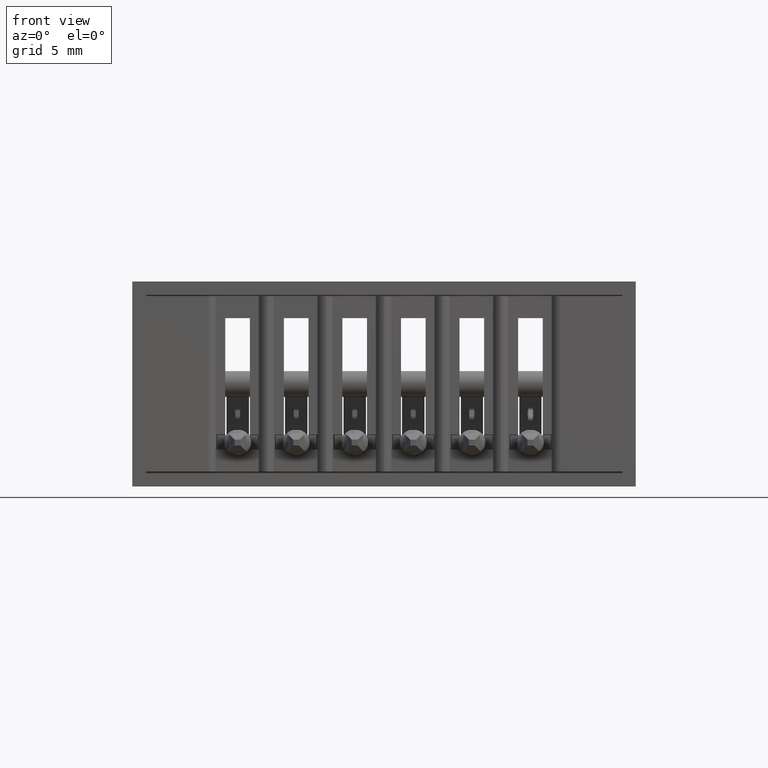
[diagram: clean part render]
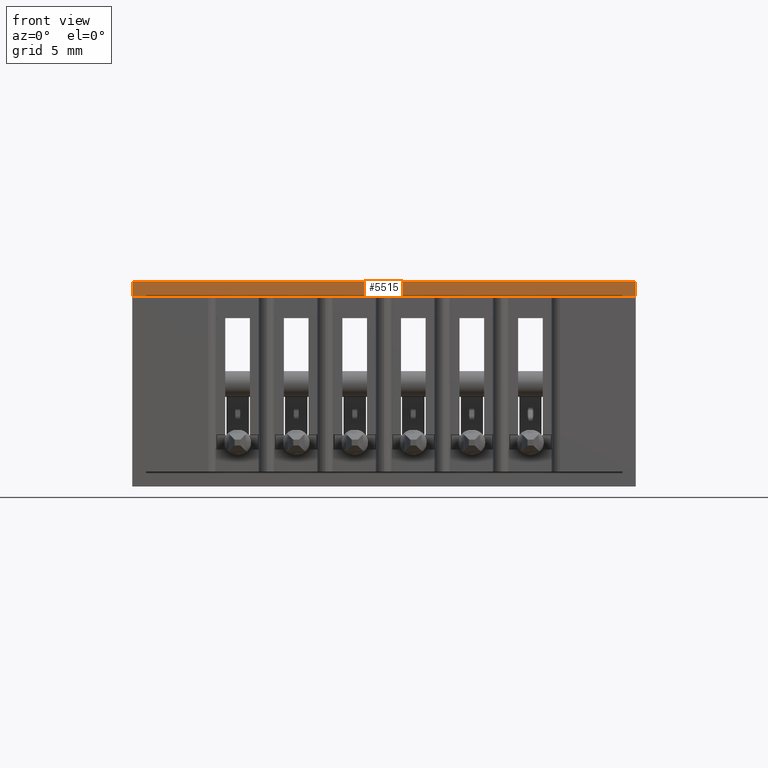
[diagram: same view with one face highlighted and labeled with its STEP entity id]
A machine part, front view. The second image highlights one B-rep face of the part: STEP entity #5515.
In plain terms, the highlighted planar face has unit normal (0, 1, 0).
Its self-contained STEP definition (entity closure, byte-faithful):
#1084 = LINE ( 'NONE', #9185, #13624 ) ;
#2182 = VERTEX_POINT ( 'NONE', #3013 ) ;
#2225 = DIRECTION ( 'NONE',  ( 0.0000000000000000000, 0.0000000000000000000, -1.000000000000000000 ) ) ;
#2411 = ORIENTED_EDGE ( 'NONE', *, *, #6522, .F. ) ;
#2431 = CARTESIAN_POINT ( 'NONE',  ( 0.8599999999999999867, 0.1000000000000000056, 0.0000000000000000000 ) ) ;
#3013 = CARTESIAN_POINT ( 'NONE',  ( 0.8599999999999999867, 0.1000000000000000056, -0.02500000000000000486 ) ) ;
#3532 = VERTEX_POINT ( 'NONE', #4388 ) ;
#3889 = VECTOR ( 'NONE', #5647, 39.37007874015748143 ) ;
#3923 = ORIENTED_EDGE ( 'NONE', *, *, #10272, .T. ) ;
#4388 = CARTESIAN_POINT ( 'NONE',  ( 0.0000000000000000000, 0.1000000000000000056, -0.02500000000000000486 ) ) ;
#5515 = ADVANCED_FACE ( 'NONE', ( #14807 ), #8126, .F. ) ;
#5647 = DIRECTION ( 'NONE',  ( 0.0000000000000000000, 0.0000000000000000000, -1.000000000000000000 ) ) ;
#5900 = ORIENTED_EDGE ( 'NONE', *, *, #10689, .T. ) ;
#6013 = VERTEX_POINT ( 'NONE', #12201 ) ;
#6211 = VECTOR ( 'NONE', #9479, 39.37007874015748143 ) ;
#6522 = EDGE_CURVE ( 'NONE', #6013, #2182, #14671, .T. ) ;
#7000 = DIRECTION ( 'NONE',  ( 0.0000000000000000000, -0.0000000000000000000, 1.000000000000000000 ) ) ;
#8126 = PLANE ( 'NONE',  #11575 ) ;
#9084 = VECTOR ( 'NONE', #10433, 39.37007874015748143 ) ;
#9185 = CARTESIAN_POINT ( 'NONE',  ( 0.0000000000000000000, 0.1000000000000000056, 0.0000000000000000000 ) ) ;
#9227 = CARTESIAN_POINT ( 'NONE',  ( 0.8599999999999999867, 0.1000000000000000056, 0.0000000000000000000 ) ) ;
#9479 = DIRECTION ( 'NONE',  ( -1.000000000000000000, -0.0000000000000000000, -0.0000000000000000000 ) ) ;
#9904 = CARTESIAN_POINT ( 'NONE',  ( 0.0000000000000000000, 0.1000000000000000056, 0.0000000000000000000 ) ) ;
#10272 = EDGE_CURVE ( 'NONE', #12091, #3532, #1084, .T. ) ;
#10433 = DIRECTION ( 'NONE',  ( -1.000000000000000000, -0.0000000000000000000, -0.0000000000000000000 ) ) ;
#10444 = DIRECTION ( 'NONE',  ( -0.0000000000000000000, 1.000000000000000000, 0.0000000000000000000 ) ) ;
#10689 = EDGE_CURVE ( 'NONE', #6013, #12091, #12334, .T. ) ;
#10757 = CARTESIAN_POINT ( 'NONE',  ( 0.8599999999999999867, 0.1000000000000000056, -0.02500000000000000486 ) ) ;
#11575 = AXIS2_PLACEMENT_3D ( 'NONE', #2431, #10444, #7000 ) ;
#12091 = VERTEX_POINT ( 'NONE', #9904 ) ;
#12201 = CARTESIAN_POINT ( 'NONE',  ( 0.8599999999999999867, 0.1000000000000000056, 0.0000000000000000000 ) ) ;
#12334 = LINE ( 'NONE', #9227, #9084 ) ;
#12385 = EDGE_LOOP ( 'NONE', ( #3923, #14349, #2411, #5900 ) ) ;
#12479 = CARTESIAN_POINT ( 'NONE',  ( 0.8599999999999999867, 0.1000000000000000056, 0.0000000000000000000 ) ) ;
#12666 = EDGE_CURVE ( 'NONE', #2182, #3532, #14277, .T. ) ;
#13624 = VECTOR ( 'NONE', #2225, 39.37007874015748143 ) ;
#14277 = LINE ( 'NONE', #10757, #6211 ) ;
#14349 = ORIENTED_EDGE ( 'NONE', *, *, #12666, .F. ) ;
#14671 = LINE ( 'NONE', #12479, #3889 ) ;
#14807 = FACE_OUTER_BOUND ( 'NONE', #12385, .T. ) ;